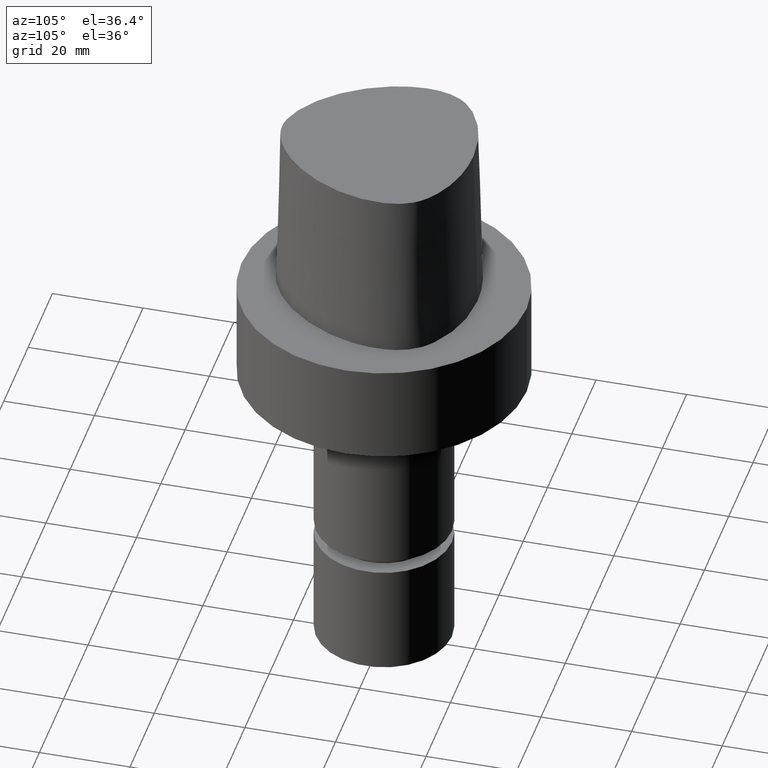
[diagram: clean part render]
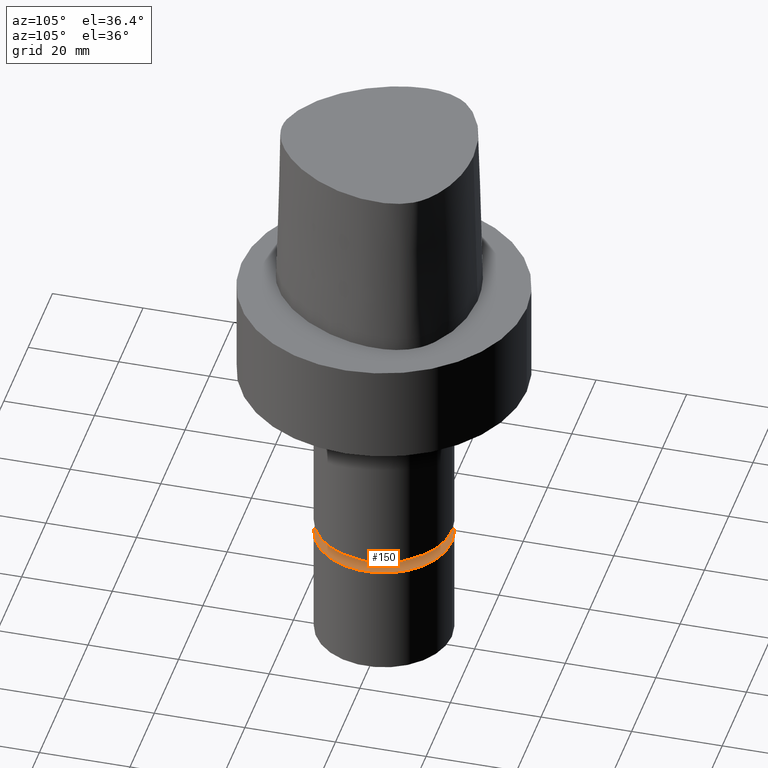
[diagram: same view with one face highlighted and labeled with its STEP entity id]
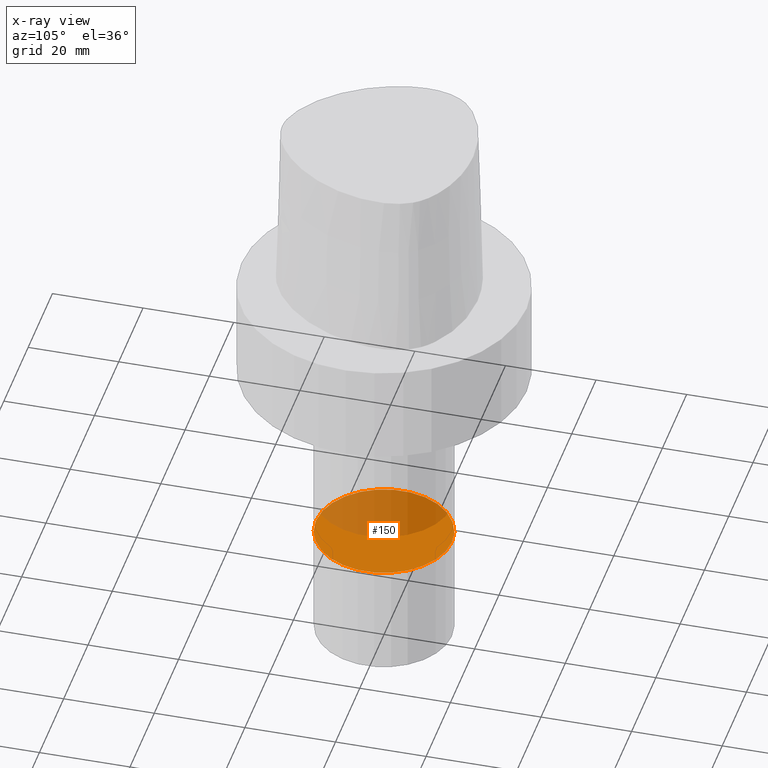
[diagram: x-ray of the same camera — body ghosted, the highlighted face saturated]
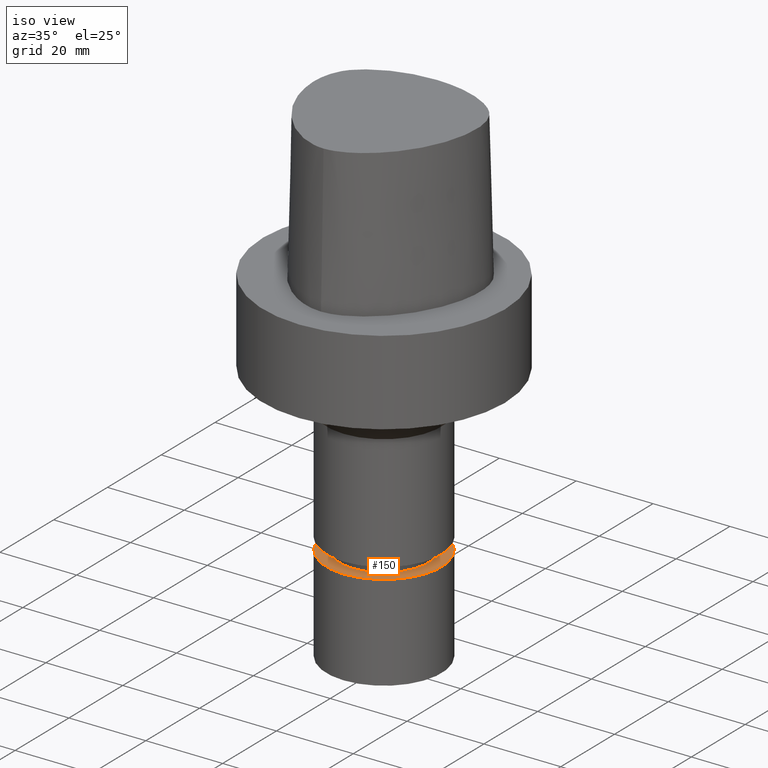
[diagram: same view with one face highlighted and labeled with its STEP entity id]
A machine part, auxiliary view. The second image highlights one B-rep face of the part: STEP entity #150.
The next image is the same camera in x-ray: the body ghosted, the highlighted face saturated — about 48% of this face is hidden behind the body in this view.
A second angle (iso view) of the same face is appended — the face is thin or edge-on in the first view.
In plain terms, the highlighted planar face has unit normal (-0, -0, 1).
Its self-contained STEP definition (entity closure, byte-faithful):
#150=ADVANCED_FACE('Unnamed[1]',(#306),#307,.T.);
#163=EDGE_CURVE('Unnamed[1]',#323,#323,#324,.T.);
#306=FACE_OUTER_BOUND('',#631,.T.);
#307=PLANE('',#632);
#323=VERTEX_POINT('',#719);
#324=CIRCLE('',#720,15.0000000000001);
#631=EDGE_LOOP('',(#851));
#632=AXIS2_PLACEMENT_3D('',#852,#853,#854);
#719=CARTESIAN_POINT('',(3.9801020972289E-015,15.0000000000001,-65.0));
#720=AXIS2_PLACEMENT_3D('',#869,#870,#871);
#851=ORIENTED_EDGE('',*,*,#163,.F.);
#852=CARTESIAN_POINT('',(3.9801020972289E-015,7.50000000000004,-65.0));
#853=DIRECTION('',(-6.12323399573677E-017,-1.22464679914735E-016,1.0));
#854=DIRECTION('',(1.23259516440783E-032,-1.0,-1.22464679914735E-016));
#869=CARTESIAN_POINT('',(3.9801020972289E-015,7.9602041944578E-015,-65.0));
#870=DIRECTION('',(6.12323399573677E-017,1.22464679914735E-016,-1.0));
#871=DIRECTION('',(-1.23259516440783E-032,1.0,1.22464679914735E-016));